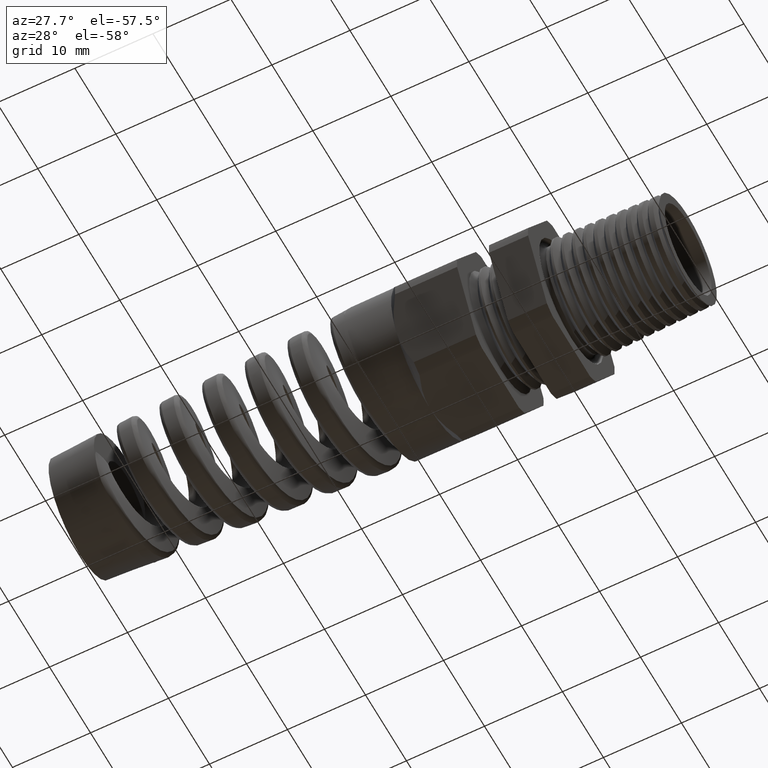
[diagram: clean part render]
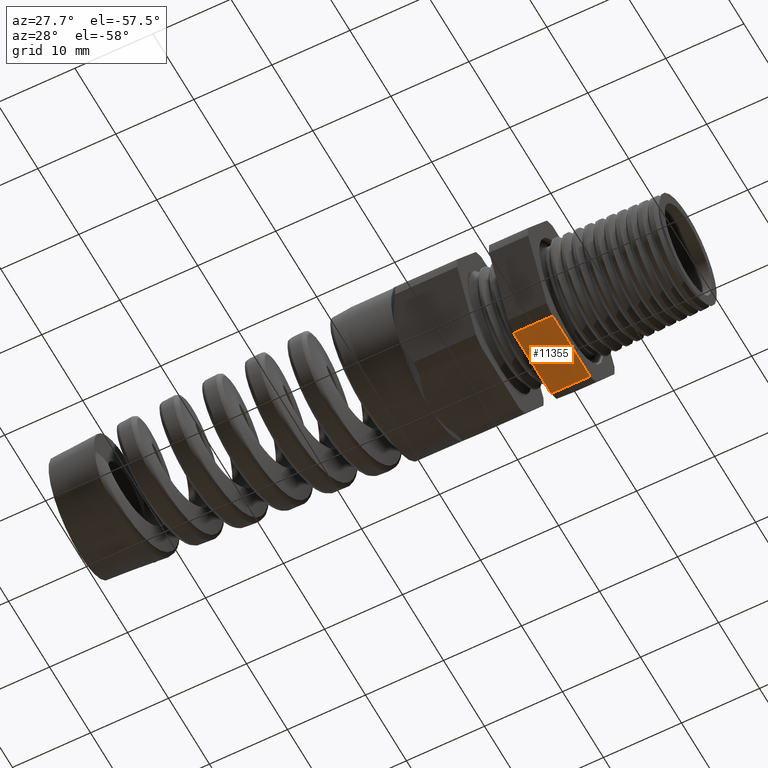
[diagram: same view with one face highlighted and labeled with its STEP entity id]
A machine part, auxiliary view. The second image highlights one B-rep face of the part: STEP entity #11355.
In plain terms, the highlighted planar face has unit normal (0, 0, -1).
Its self-contained STEP definition (entity closure, byte-faithful):
#1807 = DIRECTION ( 'NONE',  ( -1.000000000000000000, 0.0000000000000000000, 0.0000000000000000000 ) ) ;
#1808 = VECTOR ( 'NONE', #1807, 39.37007874015748100 ) ;
#1809 = CARTESIAN_POINT ( 'NONE',  ( 0.2800000000000000300, -0.1806628420566884200, -0.3750000000000001100 ) ) ;
#1810 = LINE ( 'NONE', #1809, #1808 ) ;
#1811 = DIRECTION ( 'NONE',  ( -1.000000000000000000, 0.0000000000000000000, 0.0000000000000000000 ) ) ;
#1812 = DIRECTION ( 'NONE',  ( 0.0000000000000000000, 0.0000000000000000000, -1.000000000000000000 ) ) ;
#1813 = CARTESIAN_POINT ( 'NONE',  ( 0.2800000000000000300, 0.1806628420566884200, -0.3750000000000001100 ) ) ;
#1814 = AXIS2_PLACEMENT_3D ( 'NONE', #1813, #1812, #1811 ) ;
#1815 = PLANE ( 'NONE',  #1814 ) ;
#1818 = FACE_OUTER_BOUND ( 'NONE', #11690, .T. ) ;
#1882 = DIRECTION ( 'NONE',  ( -1.000000000000000000, 0.0000000000000000000, 0.0000000000000000000 ) ) ;
#1883 = VECTOR ( 'NONE', #1882, 39.37007874015748100 ) ;
#1884 = CARTESIAN_POINT ( 'NONE',  ( 0.2800000000000000300, 0.1806628420566884800, -0.3750000000000001100 ) ) ;
#1893 = LINE ( 'NONE', #1884, #1883 ) ;
#4230 = VERTEX_POINT ( 'NONE', #7044 ) ;
#4232 = EDGE_CURVE ( 'NONE', #4230, #4233, #7041, .T. ) ;
#4233 = VERTEX_POINT ( 'NONE', #7037 ) ;
#4556 = VERTEX_POINT ( 'NONE', #7214 ) ;
#4562 = VERTEX_POINT ( 'NONE', #7208 ) ;
#4564 = EDGE_CURVE ( 'NONE', #4562, #4556, #7270, .T. ) ;
#7037 = CARTESIAN_POINT ( 'NONE',  ( -0.5068503937007874400, -0.1806628420566884200, -0.3750000000000001100 ) ) ;
#7038 = DIRECTION ( 'NONE',  ( 0.0000000000000000000, -1.000000000000000000, 0.0000000000000000000 ) ) ;
#7039 = VECTOR ( 'NONE', #7038, 39.37007874015748100 ) ;
#7040 = CARTESIAN_POINT ( 'NONE',  ( -0.5068503937007874400, 0.7500000000000001100, -0.3750000000000001100 ) ) ;
#7041 = LINE ( 'NONE', #7040, #7039 ) ;
#7044 = CARTESIAN_POINT ( 'NONE',  ( -0.5068503937007874400, 0.1806628420566884800, -0.3750000000000001100 ) ) ;
#7208 = CARTESIAN_POINT ( 'NONE',  ( -0.3100000000000000000, -0.1806628420566884200, -0.3750000000000001100 ) ) ;
#7214 = CARTESIAN_POINT ( 'NONE',  ( -0.3100000000000000000, 0.1806628420566884800, -0.3750000000000001100 ) ) ;
#7267 = DIRECTION ( 'NONE',  ( 0.0000000000000000000, 1.000000000000000000, 0.0000000000000000000 ) ) ;
#7268 = VECTOR ( 'NONE', #7267, 39.37007874015748100 ) ;
#7269 = CARTESIAN_POINT ( 'NONE',  ( -0.3100000000000000000, 0.7500000000000001100, -0.3750000000000001100 ) ) ;
#7270 = LINE ( 'NONE', #7269, #7268 ) ;
#11355 = ADVANCED_FACE ( 'NONE', ( #1818 ), #1815, .T. ) ;
#11361 = EDGE_CURVE ( 'NONE', #4562, #4233, #1810, .T. ) ;
#11374 = ORIENTED_EDGE ( 'NONE', *, *, #4564, .F. ) ;
#11392 = EDGE_CURVE ( 'NONE', #4556, #4230, #1893, .T. ) ;
#11690 = EDGE_LOOP ( 'NONE', ( #11691, #11693, #11692, #11374 ) ) ;
#11691 = ORIENTED_EDGE ( 'NONE', *, *, #11361, .T. ) ;
#11692 = ORIENTED_EDGE ( 'NONE', *, *, #11392, .F. ) ;
#11693 = ORIENTED_EDGE ( 'NONE', *, *, #4232, .F. ) ;